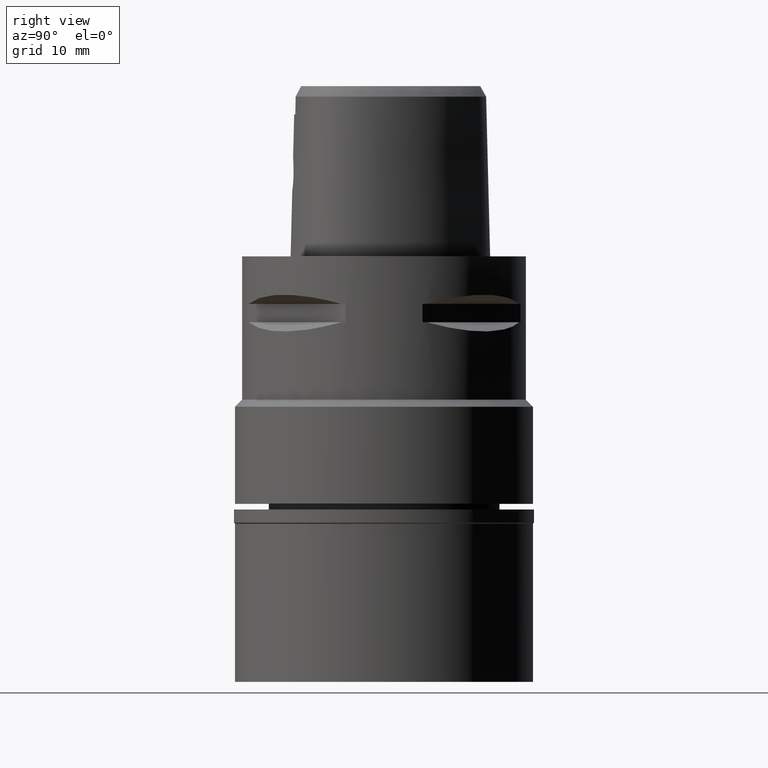
[diagram: clean part render]
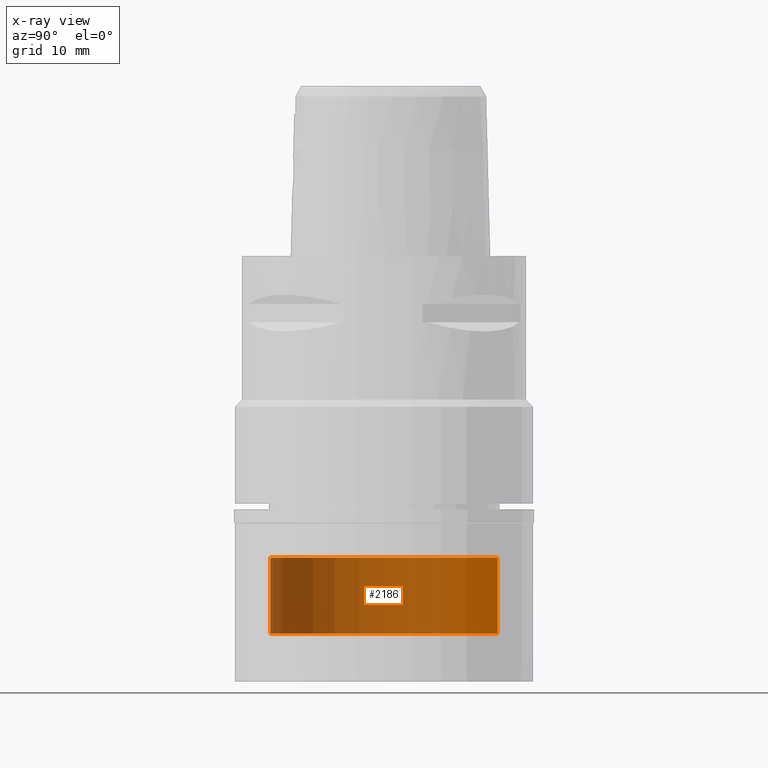
[diagram: x-ray — body ghosted, one internal face saturated and labeled with its STEP entity id]
A machine part, right view, then the same camera in x-ray: the body is ghosted and one INTERNAL B-rep face — a face not visible from any outside direction — is saturated and labeled: STEP entity #2186.
In plain terms, the highlighted cylindrical surface (partial cylindrical patch) has radius 16 mm, axis along (0, 0, -1).
Its self-contained STEP definition (entity closure, byte-faithful):
#116 = CARTESIAN_POINT ( 'NONE',  ( 0.0000000000000000000, -16.00000000000000000, -17.50000000000000000 ) ) ;
#159 = VECTOR ( 'NONE', #4088, 1000.000000000000000 ) ;
#383 = DIRECTION ( 'NONE',  ( 0.0000000000000000000, 1.000000000000000000, 0.0000000000000000000 ) ) ;
#430 = VERTEX_POINT ( 'NONE', #1958 ) ;
#541 = AXIS2_PLACEMENT_3D ( 'NONE', #1750, #3873, #383 ) ;
#789 = LINE ( 'NONE', #2226, #159 ) ;
#826 = CARTESIAN_POINT ( 'NONE',  ( 0.0000000000000000000, 16.00000000000000000, -6.799999999999999822 ) ) ;
#830 = AXIS2_PLACEMENT_3D ( 'NONE', #3551, #4360, #1083 ) ;
#1083 = DIRECTION ( 'NONE',  ( 0.0000000000000000000, -1.000000000000000000, 0.0000000000000000000 ) ) ;
#1335 = ORIENTED_EDGE ( 'NONE', *, *, #2095, .F. ) ;
#1343 = EDGE_LOOP ( 'NONE', ( #2835, #1335, #4620, #4237 ) ) ;
#1357 = CARTESIAN_POINT ( 'NONE',  ( 0.0000000000000000000, 0.0000000000000000000, -17.50000000000000000 ) ) ;
#1379 = CIRCLE ( 'NONE', #3771, 16.00000000000000000 ) ;
#1659 = VECTOR ( 'NONE', #3835, 1000.000000000000000 ) ;
#1750 = CARTESIAN_POINT ( 'NONE',  ( 0.0000000000000000000, 0.0000000000000000000, -6.799999999999999822 ) ) ;
#1787 = CYLINDRICAL_SURFACE ( 'NONE', #830, 16.00000000000000000 ) ;
#1958 = CARTESIAN_POINT ( 'NONE',  ( 0.0000000000000000000, -16.00000000000000000, -6.799999999999999822 ) ) ;
#2095 = EDGE_CURVE ( 'NONE', #4404, #430, #2387, .T. ) ;
#2186 = ADVANCED_FACE ( 'NONE', ( #2840 ), #1787, .F. ) ;
#2226 = CARTESIAN_POINT ( 'NONE',  ( 0.0000000000000000000, 16.00000000000000000, -17.50000000000000000 ) ) ;
#2380 = EDGE_CURVE ( 'NONE', #3818, #2778, #789, .T. ) ;
#2387 = LINE ( 'NONE', #4140, #1659 ) ;
#2401 = DIRECTION ( 'NONE',  ( 0.0000000000000000000, -1.000000000000000000, 0.0000000000000000000 ) ) ;
#2778 = VERTEX_POINT ( 'NONE', #826 ) ;
#2835 = ORIENTED_EDGE ( 'NONE', *, *, #4198, .T. ) ;
#2840 = FACE_OUTER_BOUND ( 'NONE', #1343, .T. ) ;
#2869 = EDGE_CURVE ( 'NONE', #4404, #3818, #1379, .T. ) ;
#2945 = CIRCLE ( 'NONE', #541, 16.00000000000000000 ) ;
#3160 = DIRECTION ( 'NONE',  ( 0.0000000000000000000, 0.0000000000000000000, -1.000000000000000000 ) ) ;
#3551 = CARTESIAN_POINT ( 'NONE',  ( 0.0000000000000000000, 0.0000000000000000000, 0.0000000000000000000 ) ) ;
#3771 = AXIS2_PLACEMENT_3D ( 'NONE', #1357, #3160, #2401 ) ;
#3795 = CARTESIAN_POINT ( 'NONE',  ( 0.0000000000000000000, 16.00000000000000000, -17.50000000000000000 ) ) ;
#3818 = VERTEX_POINT ( 'NONE', #3795 ) ;
#3835 = DIRECTION ( 'NONE',  ( 0.0000000000000000000, 0.0000000000000000000, 1.000000000000000000 ) ) ;
#3873 = DIRECTION ( 'NONE',  ( 0.0000000000000000000, 0.0000000000000000000, 1.000000000000000000 ) ) ;
#4088 = DIRECTION ( 'NONE',  ( 0.0000000000000000000, 0.0000000000000000000, 1.000000000000000000 ) ) ;
#4140 = CARTESIAN_POINT ( 'NONE',  ( 0.0000000000000000000, -16.00000000000000000, -17.50000000000000000 ) ) ;
#4198 = EDGE_CURVE ( 'NONE', #2778, #430, #2945, .T. ) ;
#4237 = ORIENTED_EDGE ( 'NONE', *, *, #2380, .T. ) ;
#4360 = DIRECTION ( 'NONE',  ( 0.0000000000000000000, 0.0000000000000000000, -1.000000000000000000 ) ) ;
#4404 = VERTEX_POINT ( 'NONE', #116 ) ;
#4620 = ORIENTED_EDGE ( 'NONE', *, *, #2869, .T. ) ;